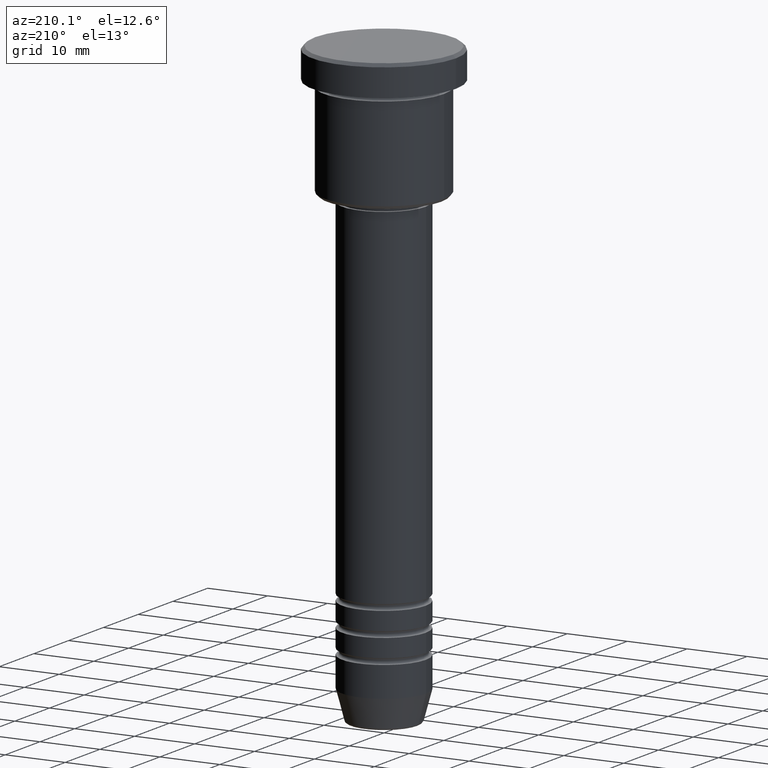
[diagram: clean part render]
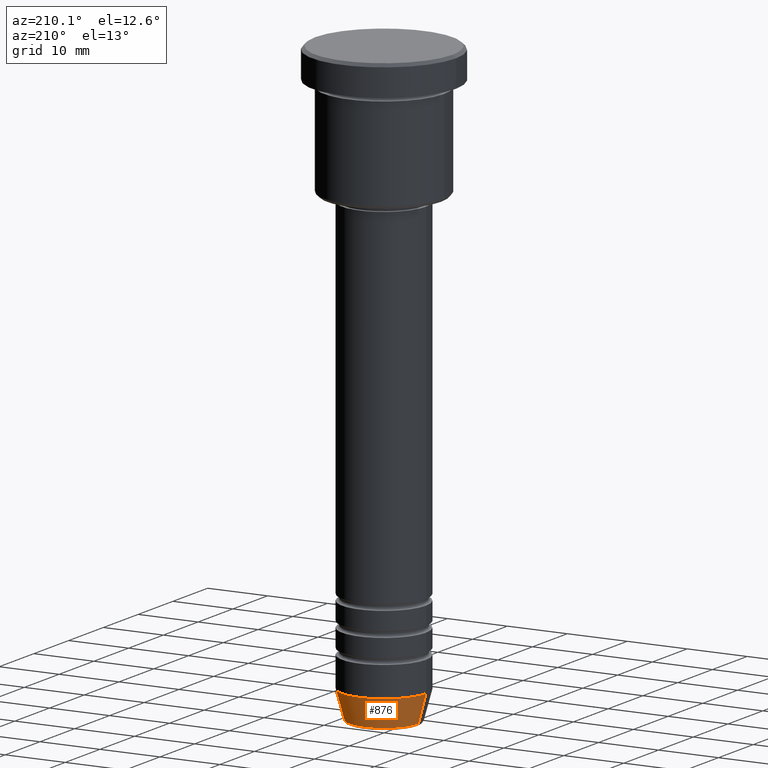
[diagram: same view with one face highlighted and labeled with its STEP entity id]
A machine part, auxiliary view. The second image highlights one B-rep face of the part: STEP entity #876.
In plain terms, the highlighted conical surface has half-angle 15 deg.
Its self-contained STEP definition (entity closure, byte-faithful):
#29 = DIRECTION ( 'NONE',  ( -0.000000000000000000, -0.000000000000000000, 1.000000000000000000 ) ) ;
#63 = EDGE_LOOP ( 'NONE', ( #286, #539, #355, #1063 ) ) ;
#72 = CARTESIAN_POINT ( 'NONE',  ( -7.000000000000000888, 8.572527594031474176E-16, -95.00000000000000000 ) ) ;
#79 = CARTESIAN_POINT ( 'NONE',  ( 7.000000000000000888, 0.000000000000000000, -95.00000000000000000 ) ) ;
#98 = AXIS2_PLACEMENT_3D ( 'NONE', #164, #953, #408 ) ;
#107 = EDGE_CURVE ( 'NONE', #367, #127, #1112, .T. ) ;
#127 = VERTEX_POINT ( 'NONE', #799 ) ;
#158 = AXIS2_PLACEMENT_3D ( 'NONE', #857, #29, #765 ) ;
#164 = CARTESIAN_POINT ( 'NONE',  ( 0.000000000000000000, 0.000000000000000000, -99.62940952255127058 ) ) ;
#182 = CONICAL_SURFACE ( 'NONE', #891, 7.000000000000000888, 0.2617993877991500740 ) ;
#194 = LINE ( 'NONE', #72, #965 ) ;
#286 = ORIENTED_EDGE ( 'NONE', *, *, #107, .T. ) ;
#293 = DIRECTION ( 'NONE',  ( -0.000000000000000000, -0.000000000000000000, 1.000000000000000000 ) ) ;
#309 = DIRECTION ( 'NONE',  ( 1.000000000000000000, 0.000000000000000000, 0.000000000000000000 ) ) ;
#355 = ORIENTED_EDGE ( 'NONE', *, *, #417, .F. ) ;
#367 = VERTEX_POINT ( 'NONE', #760 ) ;
#408 = DIRECTION ( 'NONE',  ( 1.000000000000000000, 0.000000000000000000, 0.000000000000000000 ) ) ;
#417 = EDGE_CURVE ( 'NONE', #737, #720, #535, .T. ) ;
#441 = DIRECTION ( 'NONE',  ( -0.2588190451025213501, 3.169619151431772337E-17, 0.9659258262890680902 ) ) ;
#535 = CIRCLE ( 'NONE', #158, 7.000000000000000888 ) ;
#539 = ORIENTED_EDGE ( 'NONE', *, *, #728, .T. ) ;
#576 = CARTESIAN_POINT ( 'NONE',  ( 0.000000000000000000, 0.000000000000000000, -95.00000000000000000 ) ) ;
#623 = CARTESIAN_POINT ( 'NONE',  ( -7.000000000000000888, 8.572527594031474176E-16, -95.00000000000000000 ) ) ;
#633 = LINE ( 'NONE', #986, #1016 ) ;
#634 = EDGE_CURVE ( 'NONE', #367, #737, #633, .T. ) ;
#720 = VERTEX_POINT ( 'NONE', #623 ) ;
#728 = EDGE_CURVE ( 'NONE', #127, #720, #194, .T. ) ;
#737 = VERTEX_POINT ( 'NONE', #79 ) ;
#760 = CARTESIAN_POINT ( 'NONE',  ( 5.759553456999433330, 0.000000000000000000, -99.62940952255127058 ) ) ;
#765 = DIRECTION ( 'NONE',  ( 1.000000000000000000, 0.000000000000000000, 0.000000000000000000 ) ) ;
#799 = CARTESIAN_POINT ( 'NONE',  ( -5.759553456999433330, 7.812973149831950787E-16, -99.62940952255127058 ) ) ;
#857 = CARTESIAN_POINT ( 'NONE',  ( 0.000000000000000000, 0.000000000000000000, -95.00000000000000000 ) ) ;
#876 = ADVANCED_FACE ( 'NONE', ( #939 ), #182, .T. ) ;
#891 = AXIS2_PLACEMENT_3D ( 'NONE', #576, #293, #309 ) ;
#910 = DIRECTION ( 'NONE',  ( 0.2588190451025213501, 0.000000000000000000, 0.9659258262890680902 ) ) ;
#939 = FACE_OUTER_BOUND ( 'NONE', #63, .T. ) ;
#953 = DIRECTION ( 'NONE',  ( -0.000000000000000000, -0.000000000000000000, 1.000000000000000000 ) ) ;
#965 = VECTOR ( 'NONE', #441, 1000.000000000000000 ) ;
#986 = CARTESIAN_POINT ( 'NONE',  ( 7.000000000000000888, 0.000000000000000000, -95.00000000000000000 ) ) ;
#1016 = VECTOR ( 'NONE', #910, 1000.000000000000000 ) ;
#1063 = ORIENTED_EDGE ( 'NONE', *, *, #634, .F. ) ;
#1112 = CIRCLE ( 'NONE', #98, 5.759553456999433330 ) ;